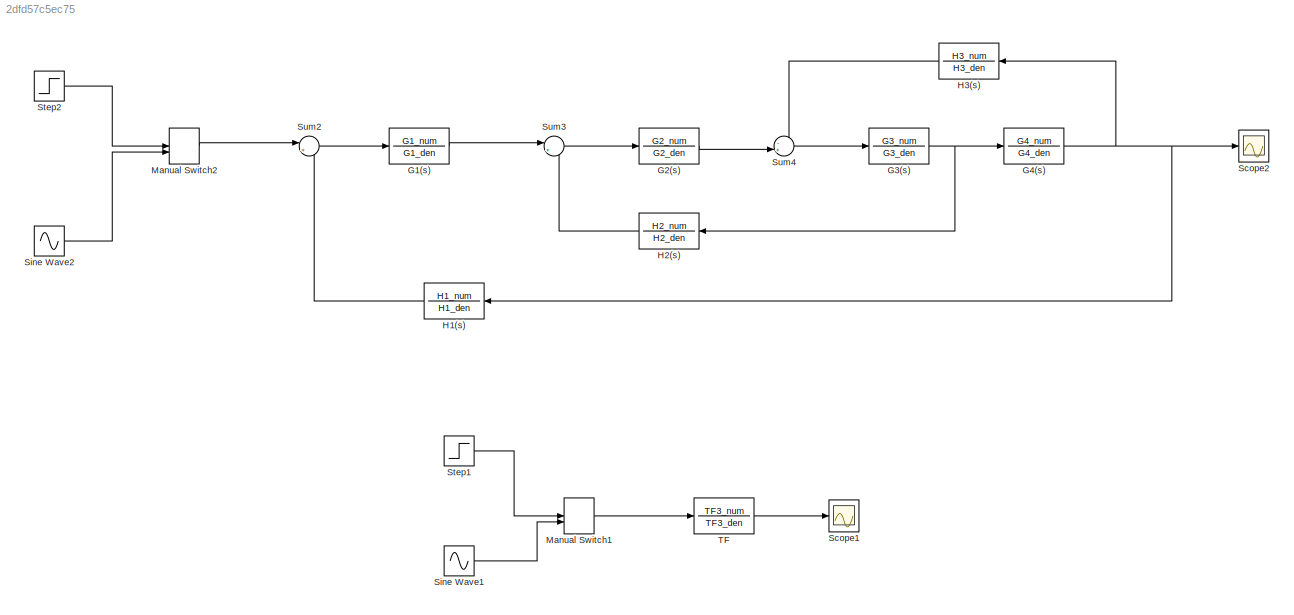
MODEL slx_2dfd57c5ec75
KIND model
CONFIG AbsTol = auto
CONFIG EnableMultiTasking = off
CONFIG FixedStep = auto
CONFIG MaxStep = auto
CONFIG MinStep = auto
CONFIG RelTol = 1e-3
CONFIG SampleTimeConstraint = Unconstrained
CONFIG SolverName = VariableStepAuto
CONFIG StartTime = 0.0
CONFIG StopTime = 20
BLOCK [TransferFcn] G1(s)
  Denominator = G1_den
  Numerator = G1_num
BLOCK [TransferFcn] G2(s)
  Denominator = G2_den
  Numerator = G2_num
BLOCK [TransferFcn] G3(s)
  Denominator = G3_den
  Numerator = G3_num
BLOCK [TransferFcn] G4(s)
  Denominator = G4_den
  Numerator = G4_num
BLOCK [TransferFcn] H1(s)
  Denominator = H1_den
  Numerator = H1_num
BLOCK [TransferFcn] H2(s)
  Denominator = H2_den
  Numerator = H2_num
BLOCK [TransferFcn] H3(s)
  Denominator = H3_den
  Numerator = H3_num
BLOCK [ManualSwitch] Manual Switch1
  CurrentSetting = 0
BLOCK [ManualSwitch] Manual Switch2
  CurrentSetting = 0
BLOCK [Scope] Scope1
  Floating = off
  NumInputPorts = 1
  ScopeSpecificationString = Simulink.scopes.TimeScopeBlockCfg('CurrentConfiguration', extmgr.ConfigurationSet(extmgr.Configuration('Core','General UI',true),extmgr.Configuration('Core','Source UI',true),extmgr.Configuration('Sources','WiredSimulink',true,'DataLoggingVariableName','ScopeData1'),extmgr.Configuration('Visuals','Time Domain',true,'SerializedDisplays',{struct('MinYLimReal','-2174125720852.55688','MaxYLimReal','24...<+1453ch>
BLOCK [Scope] Scope2
  Floating = off
  NumInputPorts = 1
  ScopeSpecificationString = Simulink.scopes.TimeScopeBlockCfg('CurrentConfiguration', extmgr.ConfigurationSet(extmgr.Configuration('Core','General UI',true),extmgr.Configuration('Core','Source UI',true),extmgr.Configuration('Sources','WiredSimulink',true,'DataLoggingVariableName','ScopeData2'),extmgr.Configuration('Visuals','Time Domain',true,'SerializedDisplays',{struct('MinYLimReal','-8186142083915.43164','MaxYLimReal','90...<+1482ch>
BLOCK [Sin] Sine Wave1
  SampleTime = 0
BLOCK [Sin] Sine Wave2
  SampleTime = 0
BLOCK [Step] Step1
  SampleTime = 0
BLOCK [Step] Step2
  SampleTime = 0
BLOCK [Sum] Sum2
  Inputs = |+-
BLOCK [Sum] Sum3
  Inputs = |+-
BLOCK [Sum] Sum4
  Inputs = -+|
BLOCK [TransferFcn] TF
  Denominator = TF3_den
  Numerator = TF3_num
LINE G1(s):1 -> Sum3:1
LINE G2(s):1 -> Sum4:2
NET G3(s):1 -> G4(s):1, H2(s):1
NET G4(s):1 -> H1(s):1, H3(s):1, Scope2:1
LINE H1(s):1 -> Sum2:2
LINE H2(s):1 -> Sum3:2
LINE H3(s):1 -> Sum4:1
LINE Manual Switch1:1 -> TF:1
LINE Manual Switch2:1 -> Sum2:1
LINE Sine Wave1:1 -> Manual Switch1:2
LINE Sine Wave2:1 -> Manual Switch2:2
LINE Step1:1 -> Manual Switch1:1
LINE Step2:1 -> Manual Switch2:1
LINE Sum2:1 -> G1(s):1
LINE Sum3:1 -> G2(s):1
LINE Sum4:1 -> G3(s):1
LINE TF:1 -> Scope1:1
note: NET lines group one-source signal fan-out (src -> all destinations, sorted); 1:1 wires keep LINE
